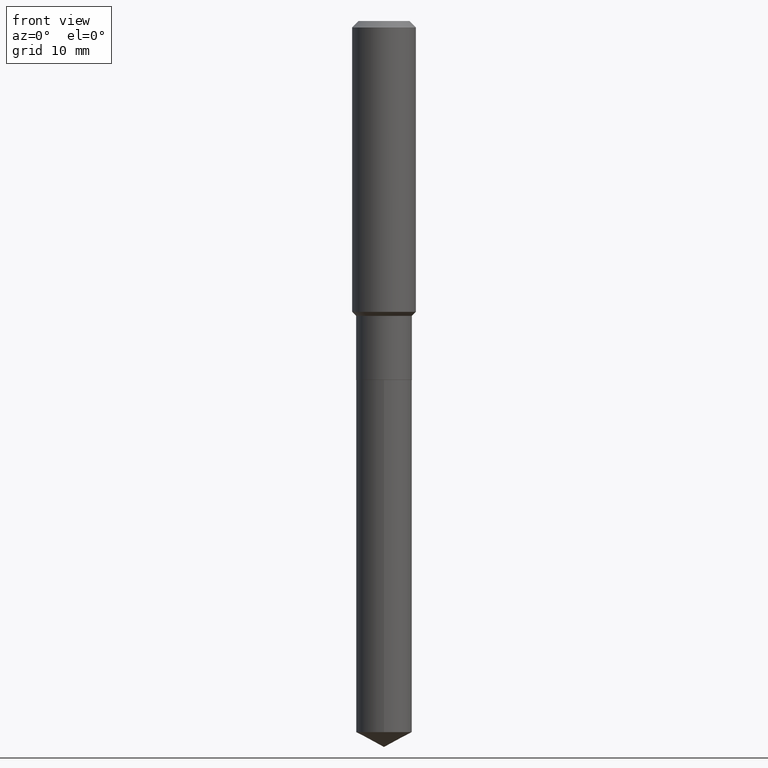
[diagram: clean part render]
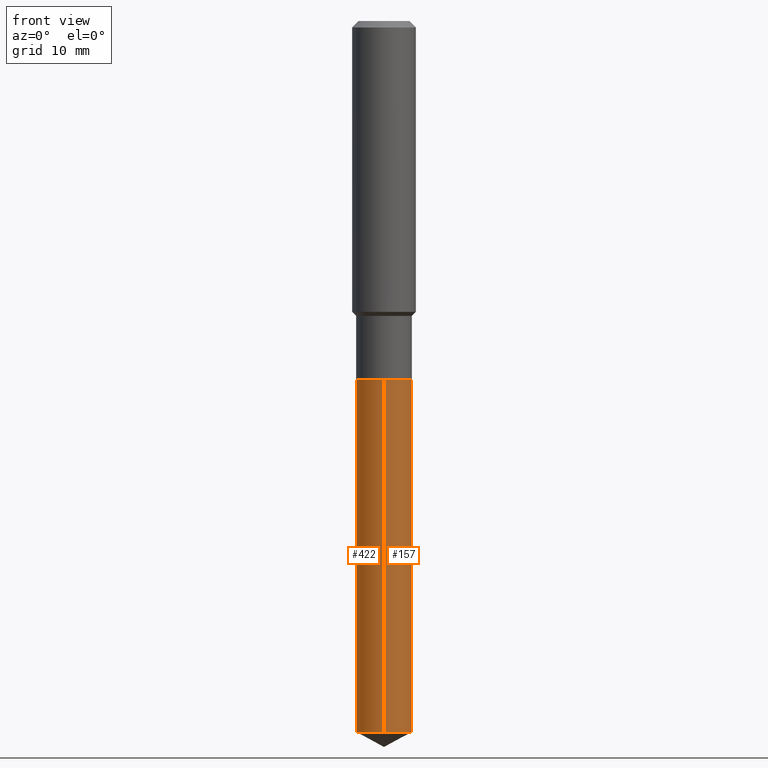
[diagram: same view with one multi-face feature highlighted, each face labeled with its STEP entity id]
A machine part, front view. The highlighted faces form ONE feature: a constant-radius fillet chain: 2 tangent blend faces with common blend radius 3.5001 mm. The faces share edges in the B-rep.
Their STEP definitions:
[1] entity #157 (Cylinder):
#4 = CARTESIAN_POINT ( 'NONE',  ( -9.622522569850814911E-16, -0.1378000000000122460, -3.509430440317047761 ) ) ;
#20 = CARTESIAN_POINT ( 'NONE',  ( -9.622522569851242868E-16, -0.1378000000000061953, -1.771699999999999831 ) ) ;
#21 = VECTOR ( 'NONE', #61, 39.37007874015748143 ) ;
#23 = CARTESIAN_POINT ( 'NONE',  ( 4.332637083918206987E-29, -6.185857488028401870E-15, -1.771700000000000497 ) ) ;
#36 = AXIS2_PLACEMENT_3D ( 'NONE', #127, #175, #246 ) ;
#56 = ORIENTED_EDGE ( 'NONE', *, *, #237, .T. ) ;
#58 = VERTEX_POINT ( 'NONE', #102 ) ;
#61 = DIRECTION ( 'NONE',  ( -2.445453820138579080E-29, 3.491502799714768727E-15, 1.000000000000000000 ) ) ;
#78 = AXIS2_PLACEMENT_3D ( 'NONE', #106, #134, #350 ) ;
#84 = CYLINDRICAL_SURFACE ( 'NONE', #36, 0.1378000000000000058 ) ;
#87 = EDGE_CURVE ( 'NONE', #345, #396, #348, .T. ) ;
#102 = CARTESIAN_POINT ( 'NONE',  ( 9.791278898775034917E-16, 0.1377999999999877101, -3.509430440317049094 ) ) ;
#106 = CARTESIAN_POINT ( 'NONE',  ( 8.582176627562627447E-29, -1.225314818554495483E-14, -3.509430440317048649 ) ) ;
#124 = ORIENTED_EDGE ( 'NONE', *, *, #383, .T. ) ;
#125 = AXIS2_PLACEMENT_3D ( 'NONE', #23, #186, #446 ) ;
#127 = CARTESIAN_POINT ( 'NONE',  ( 4.332637083918206987E-29, -6.185857488028401870E-15, -1.771700000000000497 ) ) ;
#134 = DIRECTION ( 'NONE',  ( -2.445453820138579080E-29, 3.491502799714768727E-15, 1.000000000000000000 ) ) ;
#137 = FACE_OUTER_BOUND ( 'NONE', #366, .T. ) ;
#139 = CARTESIAN_POINT ( 'NONE',  ( 9.791278898775040833E-16, 0.1377999999999938441, -1.771700000000000941 ) ) ;
#157 = ADVANCED_FACE ( 'NONE', ( #137 ), #84, .T. ) ;
#165 = ORIENTED_EDGE ( 'NONE', *, *, #87, .F. ) ;
#175 = DIRECTION ( 'NONE',  ( -2.445453820138579080E-29, 3.491502799714768727E-15, 1.000000000000000000 ) ) ;
#184 = CARTESIAN_POINT ( 'NONE',  ( 9.791278898774612876E-16, 0.1377999999999938163, -1.771700000000000941 ) ) ;
#186 = DIRECTION ( 'NONE',  ( -2.445453820138579080E-29, 3.491502799714768727E-15, 1.000000000000000000 ) ) ;
#192 = VERTEX_POINT ( 'NONE', #4 ) ;
#217 = LINE ( 'NONE', #223, #21 ) ;
#219 = LINE ( 'NONE', #184, #349 ) ;
#223 = CARTESIAN_POINT ( 'NONE',  ( -9.622522569851240896E-16, -0.1378000000000061676, -1.771699999999999831 ) ) ;
#237 = EDGE_CURVE ( 'NONE', #192, #58, #408, .T. ) ;
#246 = DIRECTION ( 'NONE',  ( -6.982962677686265922E-15, -1.000000000000000000, 3.964946289788480896E-15 ) ) ;
#248 = ORIENTED_EDGE ( 'NONE', *, *, #356, .F. ) ;
#345 = VERTEX_POINT ( 'NONE', #20 ) ;
#348 = CIRCLE ( 'NONE', #125, 0.1378000000000000058 ) ;
#349 = VECTOR ( 'NONE', #443, 39.37007874015748143 ) ;
#350 = DIRECTION ( 'NONE',  ( -6.982962677686265922E-15, -1.000000000000000000, 3.964946289788480896E-15 ) ) ;
#356 = EDGE_CURVE ( 'NONE', #192, #345, #217, .T. ) ;
#366 = EDGE_LOOP ( 'NONE', ( #56, #124, #165, #248 ) ) ;
#383 = EDGE_CURVE ( 'NONE', #58, #396, #219, .T. ) ;
#396 = VERTEX_POINT ( 'NONE', #139 ) ;
#408 = CIRCLE ( 'NONE', #78, 0.1378000000000000058 ) ;
#443 = DIRECTION ( 'NONE',  ( -2.445453820138579080E-29, 3.491502799714768727E-15, 1.000000000000000000 ) ) ;
#446 = DIRECTION ( 'NONE',  ( -6.982962677686265922E-15, -1.000000000000000000, 3.964946289788480896E-15 ) ) ;
[2] entity #422 (Cylinder):
#4 = CARTESIAN_POINT ( 'NONE',  ( -9.622522569850814911E-16, -0.1378000000000122460, -3.509430440317047761 ) ) ;
#16 = DIRECTION ( 'NONE',  ( -6.982962677686265922E-15, -1.000000000000000000, 3.964946289788480896E-15 ) ) ;
#20 = CARTESIAN_POINT ( 'NONE',  ( -9.622522569851242868E-16, -0.1378000000000061953, -1.771699999999999831 ) ) ;
#21 = VECTOR ( 'NONE', #61, 39.37007874015748143 ) ;
#25 = FACE_OUTER_BOUND ( 'NONE', #333, .T. ) ;
#27 = AXIS2_PLACEMENT_3D ( 'NONE', #97, #376, #16 ) ;
#58 = VERTEX_POINT ( 'NONE', #102 ) ;
#61 = DIRECTION ( 'NONE',  ( -2.445453820138579080E-29, 3.491502799714768727E-15, 1.000000000000000000 ) ) ;
#71 = ORIENTED_EDGE ( 'NONE', *, *, #356, .T. ) ;
#81 = AXIS2_PLACEMENT_3D ( 'NONE', #403, #400, #368 ) ;
#97 = CARTESIAN_POINT ( 'NONE',  ( 8.582176627562627447E-29, -1.225314818554495483E-14, -3.509430440317048649 ) ) ;
#102 = CARTESIAN_POINT ( 'NONE',  ( 9.791278898775034917E-16, 0.1377999999999877101, -3.509430440317049094 ) ) ;
#139 = CARTESIAN_POINT ( 'NONE',  ( 9.791278898775040833E-16, 0.1377999999999938441, -1.771700000000000941 ) ) ;
#171 = ORIENTED_EDGE ( 'NONE', *, *, #245, .T. ) ;
#184 = CARTESIAN_POINT ( 'NONE',  ( 9.791278898774612876E-16, 0.1377999999999938163, -1.771700000000000941 ) ) ;
#192 = VERTEX_POINT ( 'NONE', #4 ) ;
#217 = LINE ( 'NONE', #223, #21 ) ;
#219 = LINE ( 'NONE', #184, #349 ) ;
#222 = EDGE_CURVE ( 'NONE', #396, #345, #453, .T. ) ;
#223 = CARTESIAN_POINT ( 'NONE',  ( -9.622522569851240896E-16, -0.1378000000000061676, -1.771699999999999831 ) ) ;
#245 = EDGE_CURVE ( 'NONE', #58, #192, #253, .T. ) ;
#250 = ORIENTED_EDGE ( 'NONE', *, *, #383, .F. ) ;
#253 = CIRCLE ( 'NONE', #27, 0.1378000000000000058 ) ;
#305 = ORIENTED_EDGE ( 'NONE', *, *, #222, .F. ) ;
#333 = EDGE_LOOP ( 'NONE', ( #250, #171, #71, #305 ) ) ;
#336 = CYLINDRICAL_SURFACE ( 'NONE', #470, 0.1378000000000000058 ) ;
#345 = VERTEX_POINT ( 'NONE', #20 ) ;
#349 = VECTOR ( 'NONE', #443, 39.37007874015748143 ) ;
#356 = EDGE_CURVE ( 'NONE', #192, #345, #217, .T. ) ;
#368 = DIRECTION ( 'NONE',  ( -6.982962677686265922E-15, -1.000000000000000000, 3.964946289788480896E-15 ) ) ;
#376 = DIRECTION ( 'NONE',  ( -2.445453820138579080E-29, 3.491502799714768727E-15, 1.000000000000000000 ) ) ;
#383 = EDGE_CURVE ( 'NONE', #58, #396, #219, .T. ) ;
#384 = DIRECTION ( 'NONE',  ( -2.445453820138579080E-29, 3.491502799714768727E-15, 1.000000000000000000 ) ) ;
#396 = VERTEX_POINT ( 'NONE', #139 ) ;
#400 = DIRECTION ( 'NONE',  ( -2.445453820138579080E-29, 3.491502799714768727E-15, 1.000000000000000000 ) ) ;
#403 = CARTESIAN_POINT ( 'NONE',  ( 4.332637083918206987E-29, -6.185857488028401870E-15, -1.771700000000000497 ) ) ;
#422 = ADVANCED_FACE ( 'NONE', ( #25 ), #336, .T. ) ;
#437 = CARTESIAN_POINT ( 'NONE',  ( 4.332637083918206987E-29, -6.185857488028401870E-15, -1.771700000000000497 ) ) ;
#443 = DIRECTION ( 'NONE',  ( -2.445453820138579080E-29, 3.491502799714768727E-15, 1.000000000000000000 ) ) ;
#453 = CIRCLE ( 'NONE', #81, 0.1378000000000000058 ) ;
#470 = AXIS2_PLACEMENT_3D ( 'NONE', #437, #384, #478 ) ;
#478 = DIRECTION ( 'NONE',  ( -6.982962677686265922E-15, -1.000000000000000000, 3.964946289788480896E-15 ) ) ;